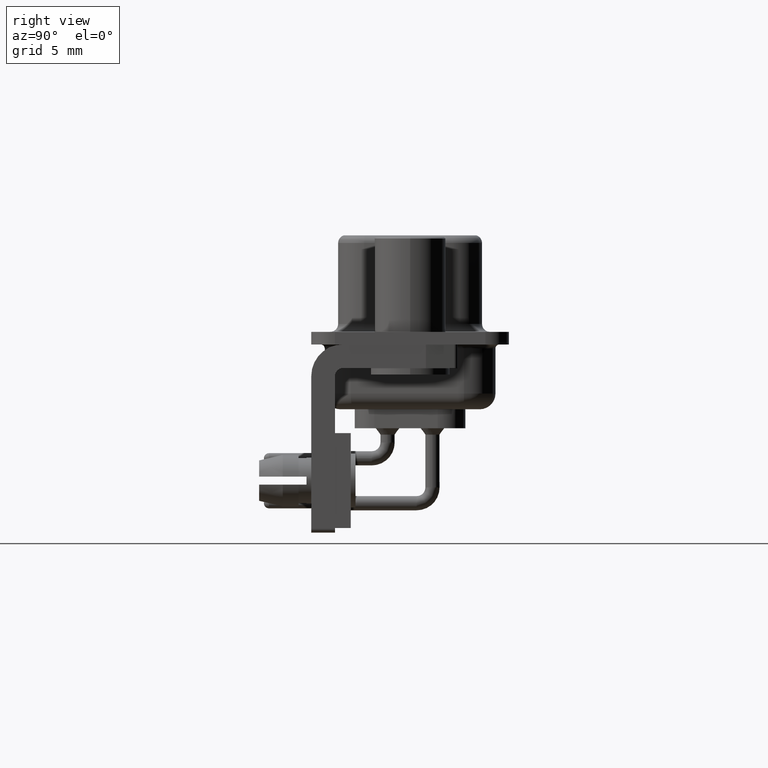
[diagram: clean part render]
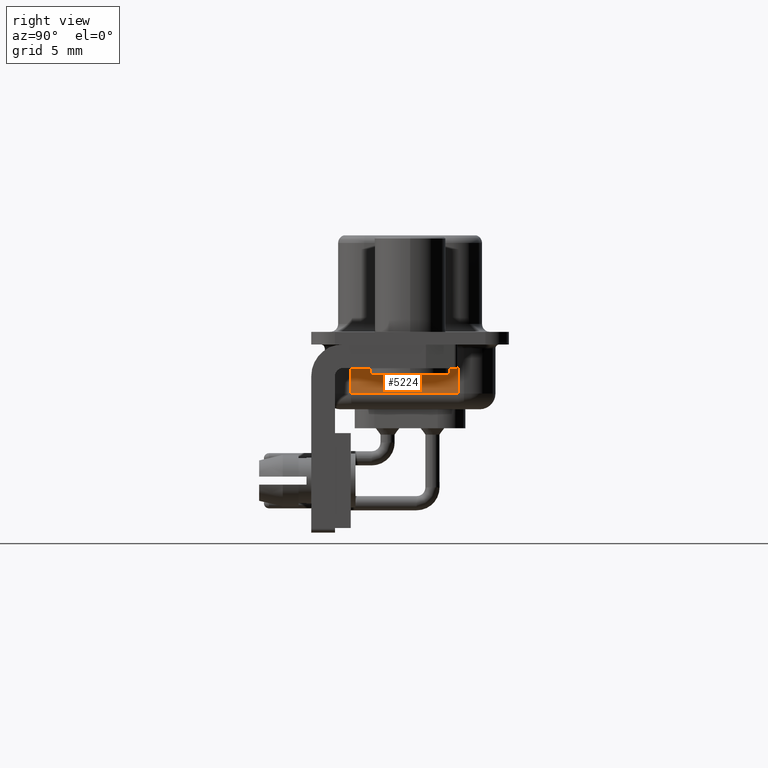
[diagram: same view with one face highlighted and labeled with its STEP entity id]
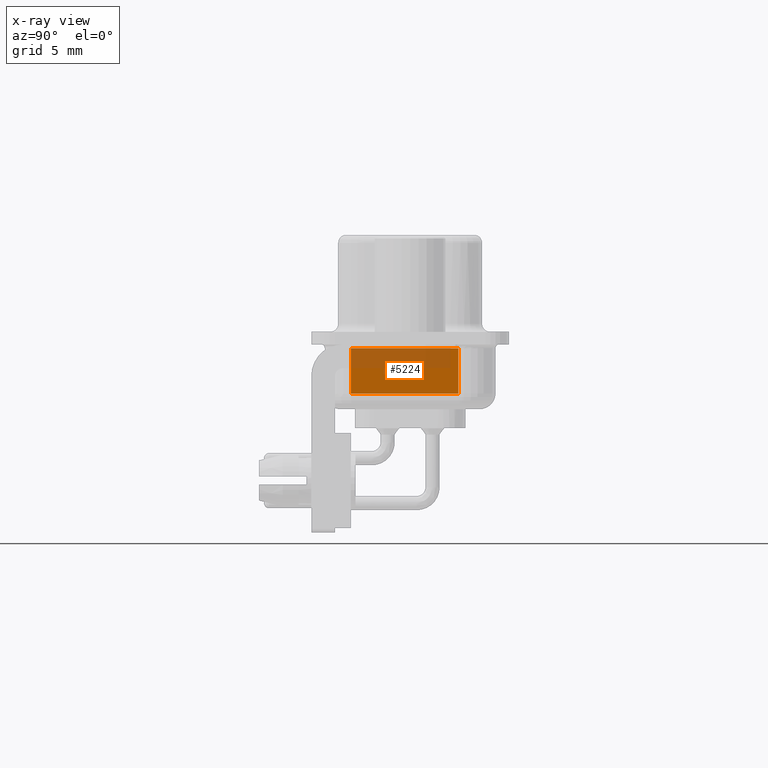
[diagram: x-ray of the same camera — body ghosted, the highlighted face saturated]
A machine part, right view. The second image highlights one B-rep face of the part: STEP entity #5224.
The next image is the same camera in x-ray: the body ghosted, the highlighted face saturated — about 46% of this face is hidden behind the body in this view.
In plain terms, the highlighted planar face has unit normal (-0.9848, 0.1736, 0).
Its self-contained STEP definition (entity closure, byte-faithful):
#712 = DIRECTION ( 'NONE',  ( -0.1736481776669242800, -0.9848077530122091300, 0.0000000000000000000 ) ) ;
#917 = EDGE_CURVE ( 'NONE', #23345, #15507, #9260, .T. ) ;
#1297 = CARTESIAN_POINT ( 'NONE',  ( 30.41961550602440700, 3.052703644666154000, -3.499999999999999600 ) ) ;
#1593 = LINE ( 'NONE', #11093, #2592 ) ;
#1772 = FACE_OUTER_BOUND ( 'NONE', #12907, .T. ) ;
#2592 = VECTOR ( 'NONE', #21306, 1000.000000000000000 ) ;
#3293 = DIRECTION ( 'NONE',  ( -0.0000000000000000000, -0.0000000000000000000, 1.000000000000000000 ) ) ;
#3546 = VERTEX_POINT ( 'NONE', #14209 ) ;
#4523 = DIRECTION ( 'NONE',  ( -0.9848077530122091300, 0.1736481776669242800, 0.0000000000000000000 ) ) ;
#4563 = PLANE ( 'NONE',  #24096 ) ;
#4617 = CARTESIAN_POINT ( 'NONE',  ( 29.22059203720688800, -3.747296355333855200, -4.500000000000000000 ) ) ;
#5224 = ADVANCED_FACE ( 'NONE', ( #1772 ), #4563, .F. ) ;
#5600 = VECTOR ( 'NONE', #3293, 1000.000000000000000 ) ;
#8023 = EDGE_CURVE ( 'NONE', #15507, #3546, #20496, .T. ) ;
#8611 = VECTOR ( 'NONE', #14796, 1000.000000000000000 ) ;
#8825 = ORIENTED_EDGE ( 'NONE', *, *, #9631, .T. ) ;
#9260 = LINE ( 'NONE', #9817, #8611 ) ;
#9631 = EDGE_CURVE ( 'NONE', #3546, #10875, #1593, .T. ) ;
#9817 = CARTESIAN_POINT ( 'NONE',  ( 29.22059203720688800, -3.747296355333855200, -3.499999999999999600 ) ) ;
#10875 = VERTEX_POINT ( 'NONE', #23181 ) ;
#11093 = CARTESIAN_POINT ( 'NONE',  ( 29.22059203720688800, -3.747296355333855200, -0.6500000000000000200 ) ) ;
#11979 = ORIENTED_EDGE ( 'NONE', *, *, #12540, .F. ) ;
#12540 = EDGE_CURVE ( 'NONE', #23345, #10875, #23439, .T. ) ;
#12907 = EDGE_LOOP ( 'NONE', ( #11979, #25755, #23027, #8825 ) ) ;
#14209 = CARTESIAN_POINT ( 'NONE',  ( 30.41961550602440700, 3.052703644666154000, -0.6500000000000000200 ) ) ;
#14314 = CARTESIAN_POINT ( 'NONE',  ( 30.41961550602440700, 3.052703644666154000, -4.500000000000000000 ) ) ;
#14492 = CARTESIAN_POINT ( 'NONE',  ( 29.22059203720688800, -3.747296355333855200, -3.499999999999999600 ) ) ;
#14796 = DIRECTION ( 'NONE',  ( 0.1736481776669242800, 0.9848077530122091300, -0.0000000000000000000 ) ) ;
#15507 = VERTEX_POINT ( 'NONE', #1297 ) ;
#18408 = DIRECTION ( 'NONE',  ( -0.0000000000000000000, -0.0000000000000000000, 1.000000000000000000 ) ) ;
#20496 = LINE ( 'NONE', #14314, #25529 ) ;
#21306 = DIRECTION ( 'NONE',  ( -0.1736481776669242800, -0.9848077530122091300, 0.0000000000000000000 ) ) ;
#23027 = ORIENTED_EDGE ( 'NONE', *, *, #8023, .T. ) ;
#23181 = CARTESIAN_POINT ( 'NONE',  ( 29.22059203720688800, -3.747296355333855200, -0.6500000000000000200 ) ) ;
#23345 = VERTEX_POINT ( 'NONE', #14492 ) ;
#23439 = LINE ( 'NONE', #26290, #5600 ) ;
#24096 = AXIS2_PLACEMENT_3D ( 'NONE', #4617, #4523, #712 ) ;
#25529 = VECTOR ( 'NONE', #18408, 1000.000000000000000 ) ;
#25755 = ORIENTED_EDGE ( 'NONE', *, *, #917, .T. ) ;
#26290 = CARTESIAN_POINT ( 'NONE',  ( 29.22059203720688800, -3.747296355333855200, -4.500000000000000000 ) ) ;